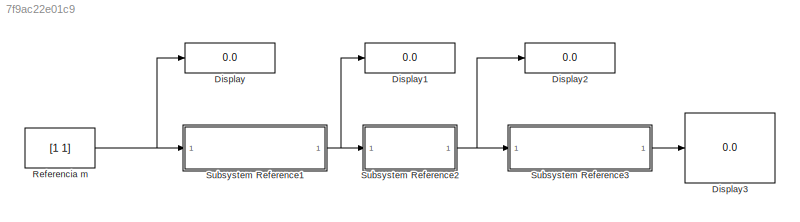
MODEL slx_7f9ac22e01c9
KIND model
CONFIG AbsTol = auto
CONFIG EnableMultiTasking = on
CONFIG FixedStep = 0.01
CONFIG MaxStep = auto
CONFIG MinStep = auto
CONFIG RelTol = 1e-3
CONFIG SampleTimeConstraint = Unconstrained
CONFIG SolverName = FixedStepDiscrete
CONFIG StartTime = 0.0
CONFIG StopTime = 10.0
WORKSPACE source: mxarray member
WORKSPACE d = 0.195
BLOCK [Display] Display
  Decimation = 1
BLOCK [Display] Display1
  Decimation = 1
BLOCK [Display] Display2
  Decimation = 1
BLOCK [Display] Display3
  Decimation = 1
BLOCK [Constant] Referencia m
  Value = [1 1]
BLOCK [SubSystem] Subsystem Reference1
  ReferencedSubsystem = PieroControlado1mZ
BLOCK [SubSystem] Subsystem Reference2
  ReferencedSubsystem = MCD
BLOCK [SubSystem] Subsystem Reference3
  ReferencedSubsystem = OdometriaZ
NET Referencia m:1 -> Display:1, Subsystem Reference1:1
NET Subsystem Reference1:1 -> Display1:1, Subsystem Reference2:1
NET Subsystem Reference2:1 -> Display2:1, Subsystem Reference3:1
LINE Subsystem Reference3:1 -> Display3:1
note: NET lines group one-source signal fan-out (src -> all destinations, sorted); 1:1 wires keep LINE
